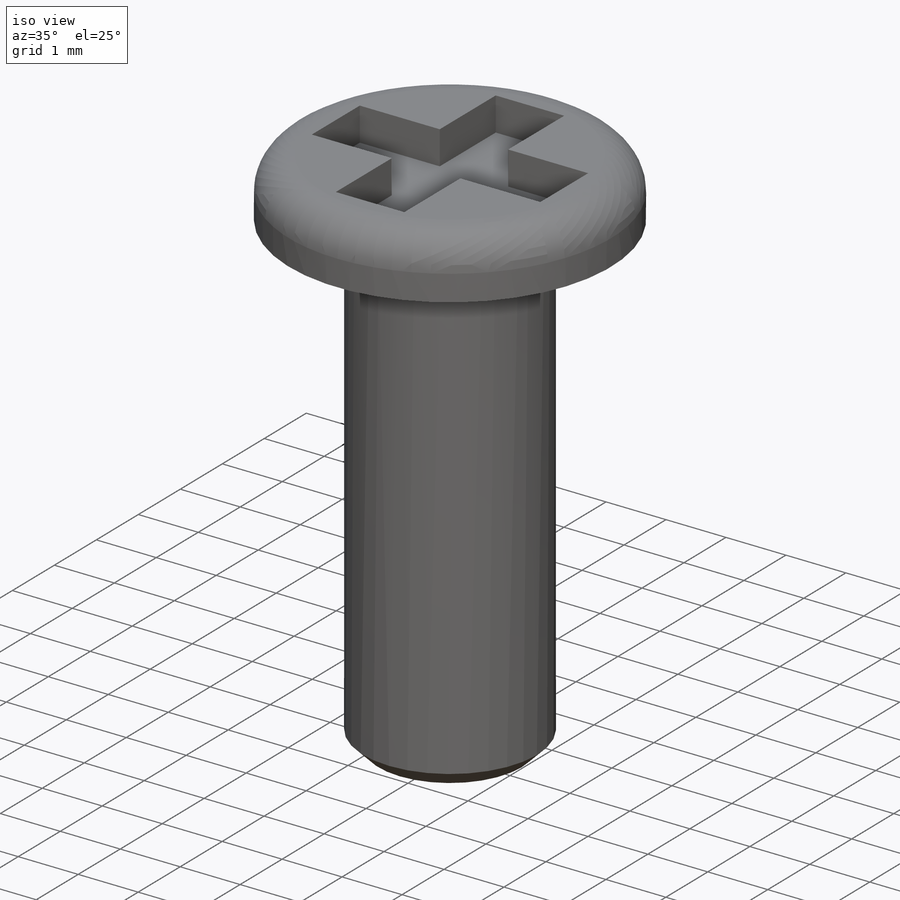
[diagram: iso view]
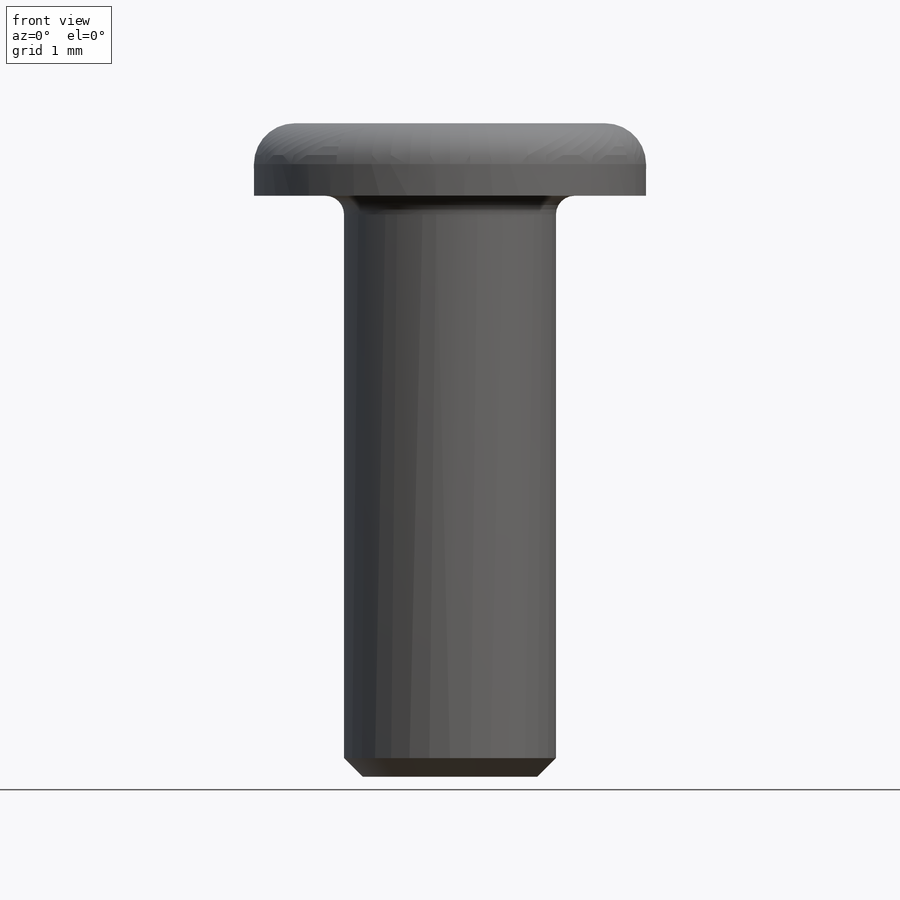
[diagram: front view]
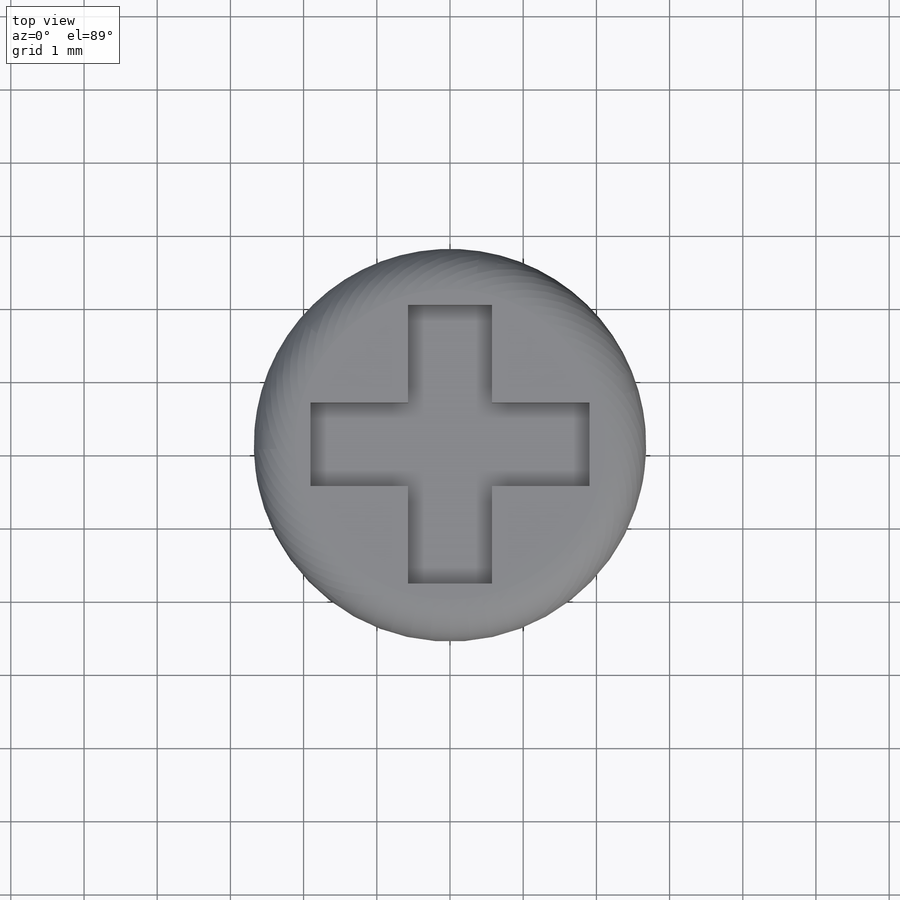
[diagram: top view]
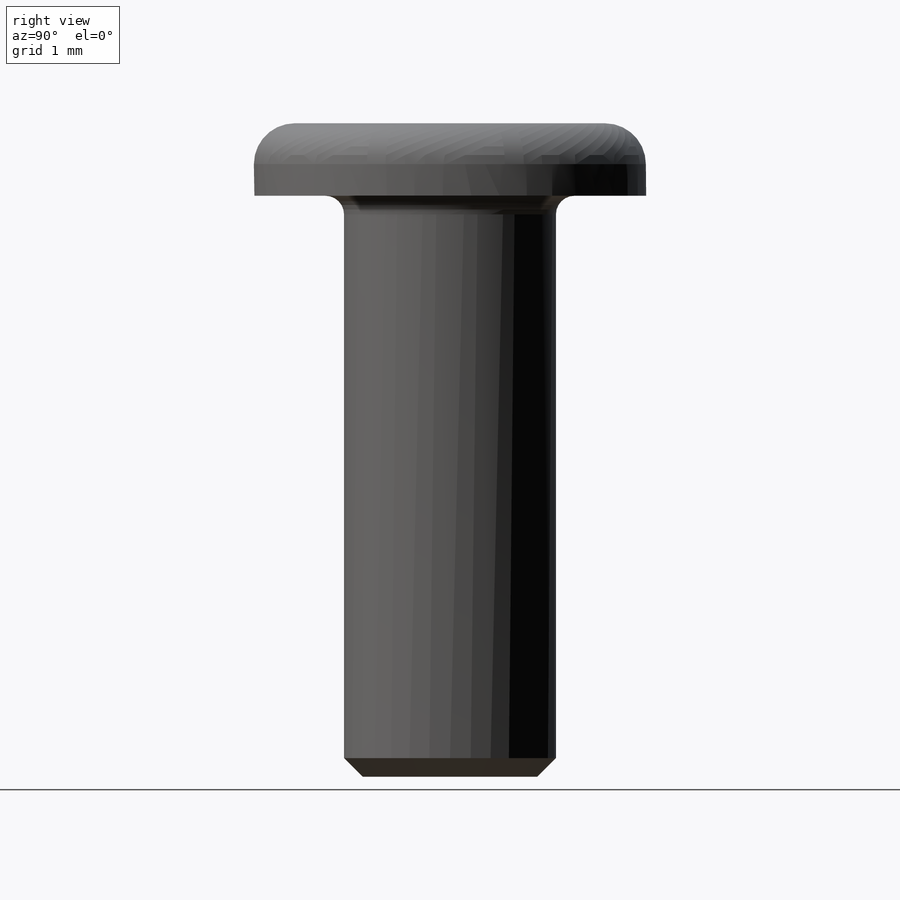
[diagram: right view]
SOLIDWORKS PART (.sldprt)
format: sldprt  version: not decoded by parser v0  size: 164,864 bytes
history: native  units: mm
features: sketch x3, fillet x2, material x1, revolve x1, extrude x1, cut_extrude x1, chamfer x1 (+11 scaffold rows collapsed)
feature tree (21):
  scaffold x11  (default folders/planes/origin — collapsed)
  material  "Plain Carbon Steel"
  sketch  "Sketch1"
  revolve  "Revolve1"  Angle=360deg
  sketch  "Sketch2"
  extrude  "Boss-Extrude1"  Depth=7.9375mm
  sketch  "Sketch3"
  cut_extrude  "Cut-Extrude1"  Depth=0.5588mm
  chamfer  "Chamfer1"  Distance=0.254mm Angle=45deg
  fillet  "Fillet1"  Radius=0.254mm
  fillet  "Fillet2"  Radius=0.5588mm
decode coverage: 6 of 9 modeling features carry decoded parameters
note: suppression state not decoded; provenance and decode notes live in map.json
